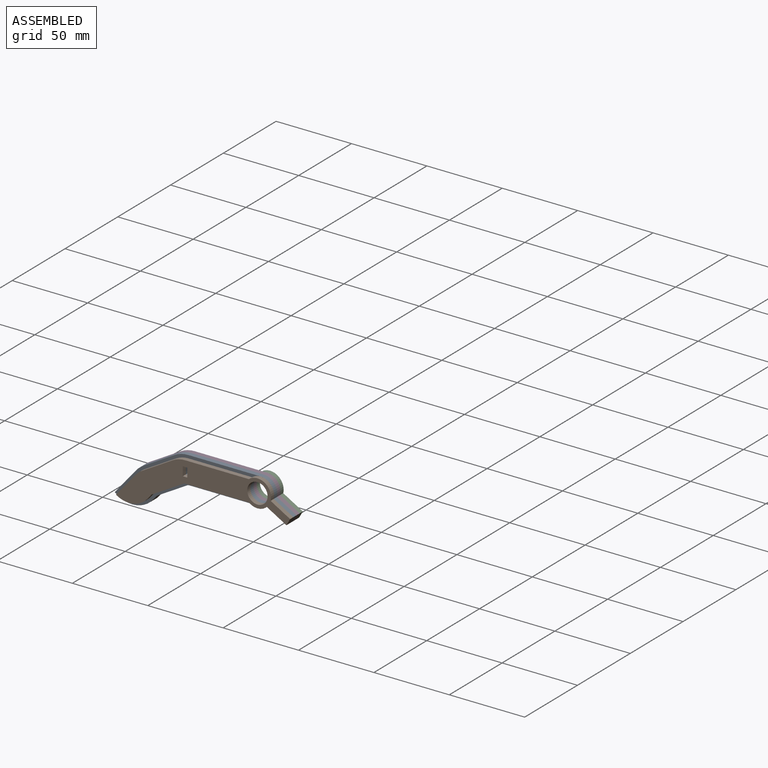
[diagram: assembled view]
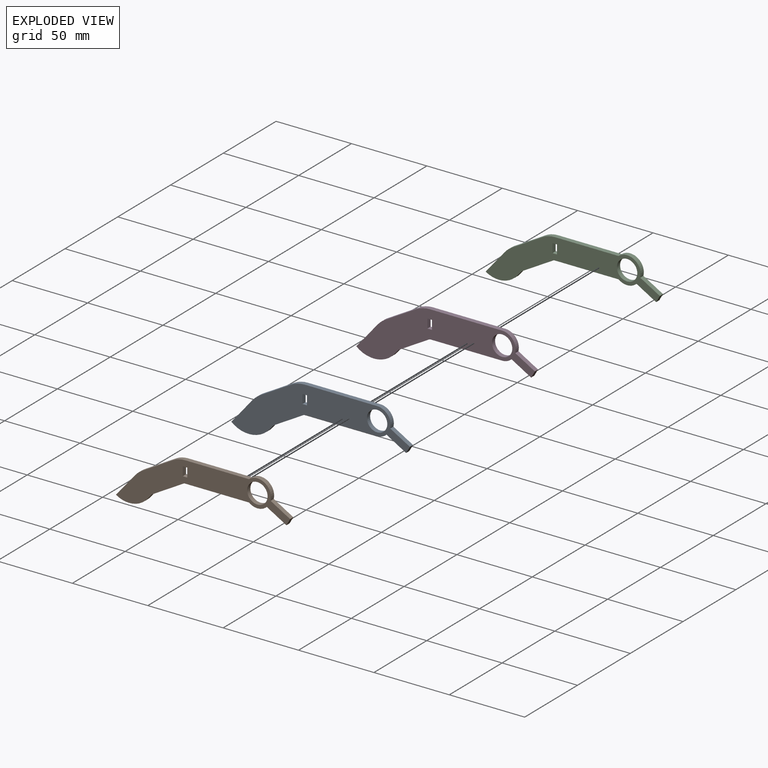
[diagram: exploded view]
GUIDED TOUR — MATED ASSEMBLY (Onshape document 5849b5e793f1111092a481f6, AutoMate assembly 5849b5e793f1111092a481f6_f9d06e3f68af1a660f3dee58_bbcfd2a10ddb605224ee5b25_default)

This assembly has 4 components, labeled P0..P3 below (a component is one placed occurrence of a part; the same part can appear more than once), held together by 3 mates. A mate is a constraint between two components; its type names the relative motion it leaves free:
  FASTENED — locks the two components together rigidly (no relative motion).
Axis/direction vectors are unit vectors and 'through' points are millimeter coordinates, both in the assembly's world frame.

MATES
  1. FASTENED "Fastened 1": P0 <-> P3, direction (0.000, 1.000, 0.000) through (10.89, 1.48, -8.92) mm
  2. FASTENED "Fastened 2": P2 <-> P3, direction (0.000, -1.000, 0.000) through (55.88, 4.48, -2.66) mm
  3. FASTENED "Fastened 3": P0 <-> P1, direction (0.000, -1.000, 0.000) through (55.88, -1.52, -2.66) mm

ASSEMBLY ORDER
  1. P1 — the base component [order verified]
  2. P0 [order verified]
  3. P3 [order verified]
  4. P2 [order verified]
Order-tag legend:
  [order verified] — this step's position reverses a verified removal order: the component was checked to insert without passing through the ones already placed.

Of the 4 components, 4 carry the full construction recipe — the FeatureScript program that regenerates the part's solid from scratch; the rest are supplied as boundary geometry only.
Each toured component is shown spotlighted twice — in the assembled view, then in the exploded view, where a leader line traces a displaced component back to its assembled socket (saturated green if recipe-attached, orange if geometry-only; every other component desaturated gray) — followed by its recipe or geometry summary and the mates that hold it.
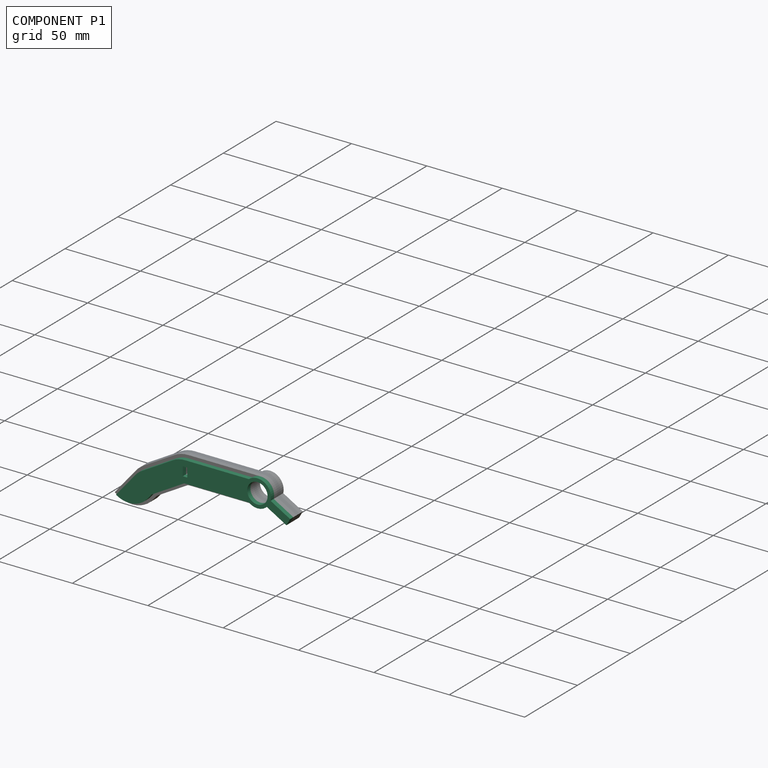
[diagram: component P1 — assembled]
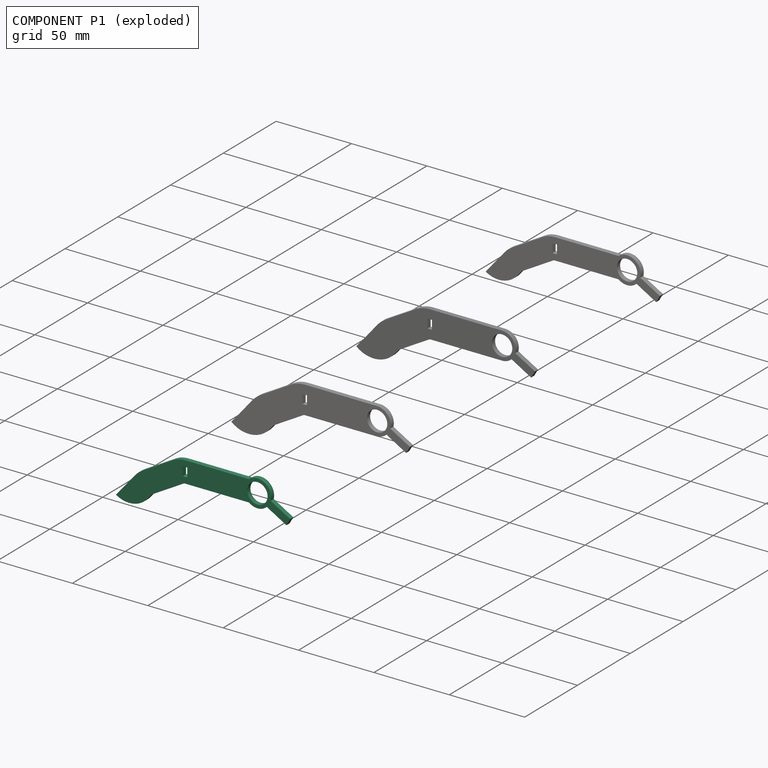
[diagram: component P1 — exploded]
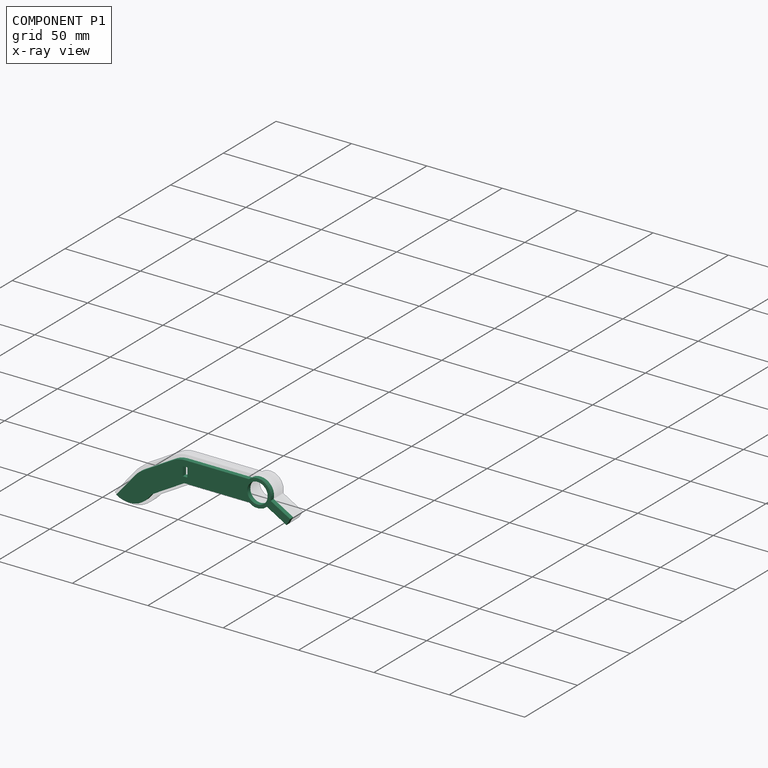
[diagram: component P1 — x-ray view]
COMPONENT P1 — recipe-attached (CADFS 00373789, mesh-verified: the recipe's output STEP matches this component's geometry to below the mesh-comparison resolution (tessellation chordal tolerance ~0.182 mm)).
Held by: FASTENED mate "Fastened 3" to P0.
Construction recipe (FeatureScript — the CAD program that rebuilds this solid; sketch coordinates are in the units given by the * unit suffixes, e.g. mm):

FeatureScript 1511;
import(path : "onshape/std/geometry.fs", version : "1511.0");
import(path : "onshape/std/common.fs", version : "1511.0");
const mm = millimeter;
const VERTEX = EntityType.VERTEX;
const EDGE = EntityType.EDGE;
const FACE = EntityType.FACE;
const BODY = EntityType.BODY;
function v(x, y){return vector(x, y);}
function OD(order){return orderDisambiguation(order);}
function OSD(set){return originalSetDisambiguation(set);}
function TD(topology){return topologyDisambiguation(topology);}
function TDD(query){return trueDependencyDisambiguation(query);}
function sQuery(a, b, c) {return sketchEntityQuery(a, b, c);}

annotation { "Feature Type Name" : "Feature", "Feature Type Description" : "" }
export const myFeature = defineFeature(function(context is Context, id is Id, definition is map)
    precondition{}
    {
        {
            var Q0;
            Q0=qCreatedBy(makeId("Front.planeOp"),FACE);
            var sketch = newSketch(context, id + "F0", { "sketchPlane" : qUnion([Q0])});
            skLineSegment(sketch, "E0.bottom", {"start": v(24, -9) * mm, "end": v(-24, -9) * mm, "construction": true});
            skLineSegment(sketch, "E0.top", {"start": v(24, 9) * mm, "end": v(-24, 9) * mm, "construction": true});
            skLineSegment(sketch, "E0.left", {"start": v(24, -9) * mm, "end": v(24, 9) * mm, "construction": true});
            skLineSegment(sketch, "E0.right", {"start": v(-24, -9) * mm, "end": v(-24, 9) * mm, "construction": true});
            skPoint(sketch, "E0.middle", {"position": v(0, 0) * mm});
            skArc(sketch, "E1", {"start": v(-24, 9) * mm, "mid": v(-28.66, 8.39) * mm, "end": v(-33, 6.59) * mm, "construction": true});
            skLineSegment(sketch, "E2", {"start": v(-33, 6.59) * mm, "end": v(-24, -9) * mm, "construction": true});
            skLineSegment(sketch, "E3", {"start": v(-33, 6.59) * mm, "end": v(-53.78, -5.41) * mm, "construction": true});
            skLineSegment(sketch, "E4", {"start": v(-24, -9) * mm, "end": v(-44.78, -21) * mm, "construction": true});
            skLineSegment(sketch, "E5", {"start": v(-53.78, -5.41) * mm, "end": v(-44.78, -21) * mm, "construction": true});
            skArc(sketch, "E6", {"start": v(-53.78, -5.41) * mm, "mid": v(-56.35, -7.21) * mm, "end": v(-58.57, -9.43) * mm, "construction": true});
            skLineSegment(sketch, "E7", {"start": v(-58.57, -9.43) * mm, "end": v(-44.78, -21) * mm, "construction": true});
            skLineSegment(sketch, "E8", {"start": v(-58.57, -9.43) * mm, "end": v(-72.71, -26.28) * mm, "construction": true});
            skLineSegment(sketch, "E9", {"start": v(-44.78, -21) * mm, "end": v(-47.36, -24.06) * mm, "construction": true});
            skArc(sketch, "E10", {"start": v(-72.71, -26.28) * mm, "mid": v(-59.58, -30.43) * mm, "end": v(-47.36, -24.06) * mm, "construction": true});
            skCircle(sketch, "E11", {"center": v(24, 0) * mm, "radius": 6.75 * mm});
            skLineSegment(sketch, "E12.0", {"start": v(24, -7) * mm, "end": v(-24.54, -7) * mm, "construction": true});
            skLineSegment(sketch, "E12.1", {"start": v(-24.54, -7) * mm, "end": v(-46.1, -19.44) * mm});
            skLineSegment(sketch, "E12.2", {"start": v(-46.1, -19.44) * mm, "end": v(-48.89, -22.78) * mm});
            skArc(sketch, "E12.3", {"start": v(-69.82, -25.94) * mm, "mid": v(-58.75, -28.31) * mm, "end": v(-48.89, -22.78) * mm});
            skLineSegment(sketch, "E12.4", {"start": v(-57.04, -10.72) * mm, "end": v(-69.82, -25.94) * mm});
            skLineSegment(sketch, "E12.5", {"start": v(24, 7) * mm, "end": v(-24, 7) * mm, "construction": true});
            skArc(sketch, "E12.6", {"start": v(-24, 7) * mm, "mid": v(-28.14, 6.45) * mm, "end": v(-32, 4.86) * mm});
            skLineSegment(sketch, "E12.7", {"start": v(-32, 4.86) * mm, "end": v(-52.78, -7.14) * mm});
            skArc(sketch, "E12.8", {"start": v(-52.78, -7.14) * mm, "mid": v(-55.07, -8.74) * mm, "end": v(-57.04, -10.72) * mm});
            skLineSegment(sketch, "E13", {"start": v(24, -7) * mm, "end": v(24, -9) * mm});
            skLineSegment(sketch, "E14", {"start": v(24, 7) * mm, "end": v(24, 9) * mm});
            skArc(sketch, "E15", {"start": v(24, 9) * mm, "mid": v(21, 8.49) * mm, "end": v(18.34, 7) * mm});
            skArc(sketch, "E16", {"start": v(24, -9) * mm, "mid": v(21, -8.49) * mm, "end": v(18.34, -7) * mm});
            skLineSegment(sketch, "E17", {"start": v(-24.54, -7) * mm, "end": v(18.34, -7) * mm});
            skLineSegment(sketch, "E18", {"start": v(18.34, 7) * mm, "end": v(-24, 7) * mm});
            skArc(sketch, "E19", {"start": v(24, 9) * mm, "mid": v(31.09, 5.55) * mm, "end": v(32.74, -2.16) * mm});
            skArc(sketch, "E20", {"start": v(24, -9) * mm, "mid": v(27.36, -8.35) * mm, "end": v(30.24, -6.49) * mm});
            skLineSegment(sketch, "E21", {"start": v(24, 0) * mm, "end": v(44.48, -11.82) * mm, "construction": true});
            skLineSegment(sketch, "E22", {"start": v(32.74, -2.16) * mm, "end": v(45.73, -9.66) * mm});
            skLineSegment(sketch, "E23", {"start": v(45.73, -9.66) * mm, "end": v(43.23, -13.99) * mm});
            skLineSegment(sketch, "E24", {"start": v(43.23, -13.99) * mm, "end": v(30.24, -6.49) * mm});
            skLineSegment(sketch, "E25.bottom", {"start": v(-22.5, -3) * mm, "end": v(-25.5, -3) * mm});
            skLineSegment(sketch, "E25.top", {"start": v(-22.5, 3) * mm, "end": v(-25.5, 3) * mm});
            skLineSegment(sketch, "E25.left", {"start": v(-22.5, -3) * mm, "end": v(-22.5, 3) * mm});
            skLineSegment(sketch, "E25.right", {"start": v(-25.5, -3) * mm, "end": v(-25.5, 3) * mm});
            skPoint(sketch, "E25.middle", {"position": v(-24, 0) * mm});
            skSolve(sketch);
        }
        {
            var Q0;
            Q0=qSketchRegion(id+"F0",true);
            extrude(context, id + "F1", {"entities" : qUnion([Q0]), "depth" : 3 * mm});
        }
    });
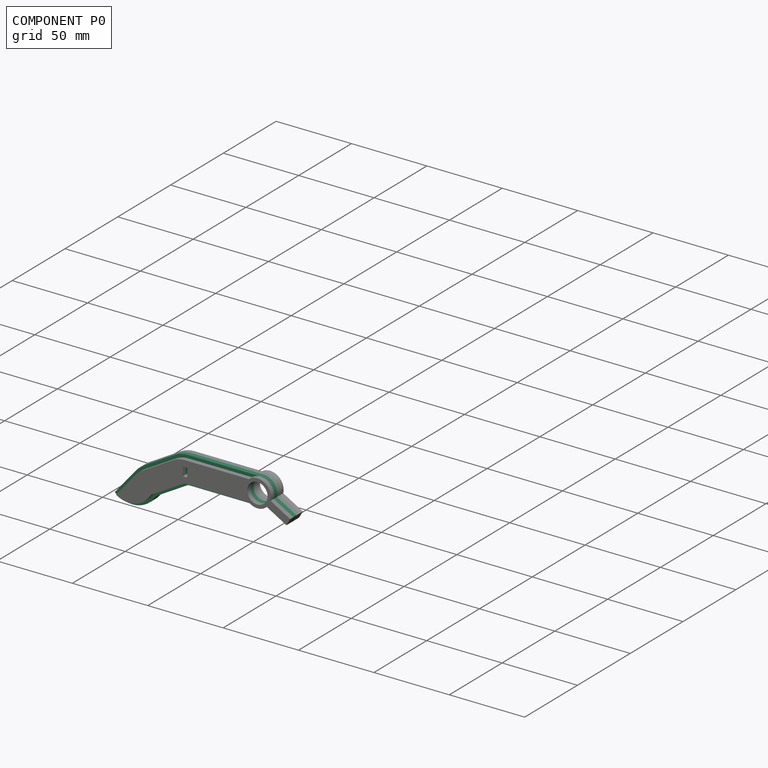
[diagram: component P0 — assembled]
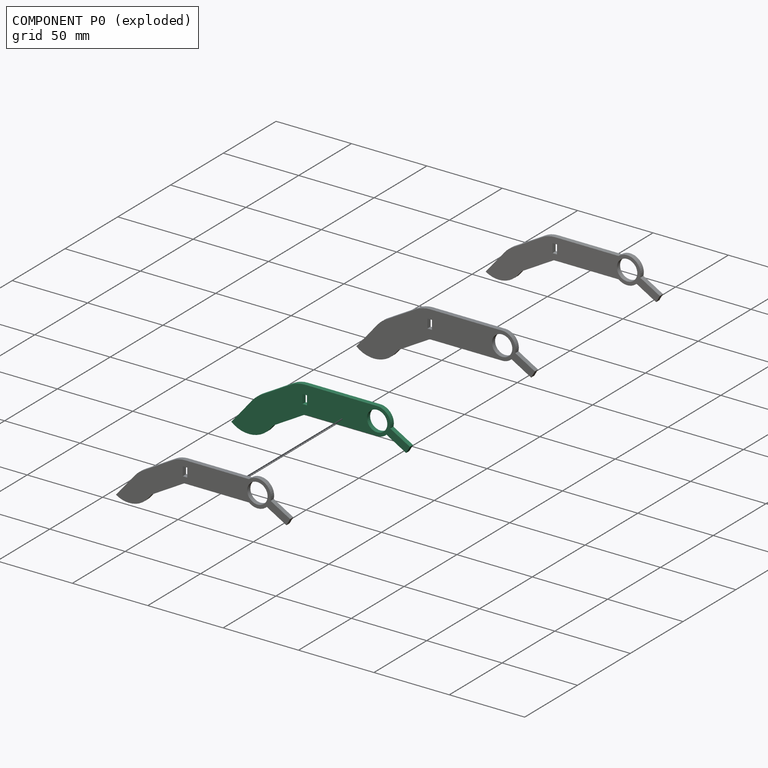
[diagram: component P0 — exploded]
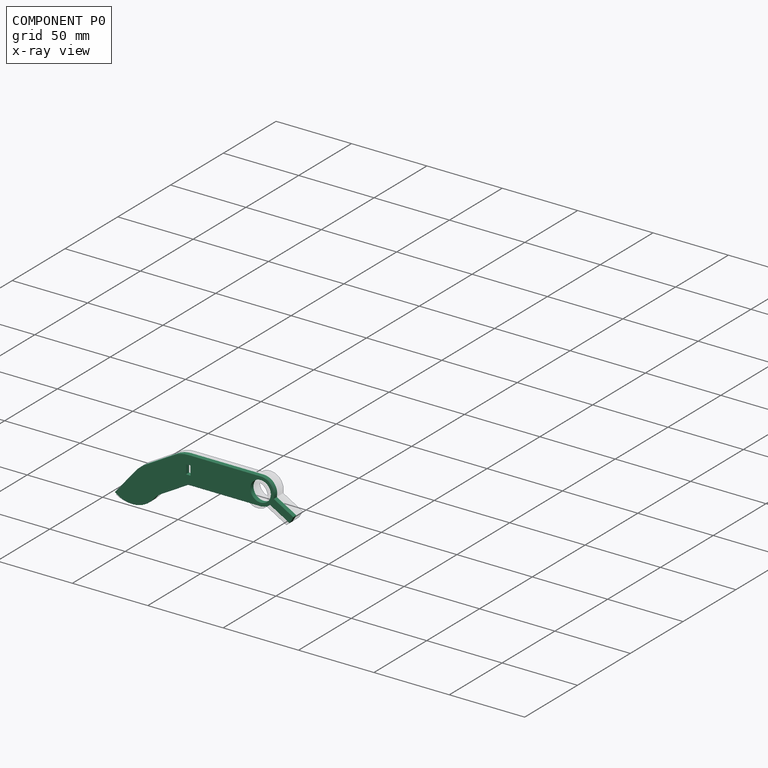
[diagram: component P0 — x-ray view]
COMPONENT P0 — recipe-attached (CADFS 00373788, mesh-verified: the recipe's output STEP matches this component's geometry to below the mesh-comparison resolution (tessellation chordal tolerance ~0.187 mm)).
Held by: FASTENED mate "Fastened 1" to P3; FASTENED mate "Fastened 3" to P1.
Construction recipe (FeatureScript — the CAD program that rebuilds this solid; sketch coordinates are in the units given by the * unit suffixes, e.g. mm):

FeatureScript 1511;
import(path : "onshape/std/geometry.fs", version : "1511.0");
import(path : "onshape/std/common.fs", version : "1511.0");
const mm = millimeter;
const VERTEX = EntityType.VERTEX;
const EDGE = EntityType.EDGE;
const FACE = EntityType.FACE;
const BODY = EntityType.BODY;
function v(x, y){return vector(x, y);}
function OD(order){return orderDisambiguation(order);}
function OSD(set){return originalSetDisambiguation(set);}
function TD(topology){return topologyDisambiguation(topology);}
function TDD(query){return trueDependencyDisambiguation(query);}
function sQuery(a, b, c) {return sketchEntityQuery(a, b, c);}

annotation { "Feature Type Name" : "Feature", "Feature Type Description" : "" }
export const myFeature = defineFeature(function(context is Context, id is Id, definition is map)
    precondition{}
    {
        {
            var Q0;
            Q0=qCreatedBy(makeId("Front.planeOp"),FACE);
            var sketch = newSketch(context, id + "F0", { "sketchPlane" : qUnion([Q0])});
            skLineSegment(sketch, "E0.bottom", {"start": v(24, -9) * mm, "end": v(-24, -9) * mm});
            skLineSegment(sketch, "E0.top", {"start": v(24, 9) * mm, "end": v(-24, 9) * mm});
            skLineSegment(sketch, "E0.left", {"start": v(24, -9) * mm, "end": v(24, 9) * mm, "construction": true});
            skLineSegment(sketch, "E0.right", {"start": v(-24, -9) * mm, "end": v(-24, 9) * mm, "construction": true});
            skPoint(sketch, "E0.middle", {"position": v(0, 0) * mm});
            skArc(sketch, "E1", {"start": v(-24, 9) * mm, "mid": v(-28.66, 8.39) * mm, "end": v(-33, 6.59) * mm});
            skLineSegment(sketch, "E2", {"start": v(-33, 6.59) * mm, "end": v(-24, -9) * mm, "construction": true});
            skLineSegment(sketch, "E3", {"start": v(-33, 6.59) * mm, "end": v(-53.78, -5.41) * mm});
            skLineSegment(sketch, "E4", {"start": v(-24, -9) * mm, "end": v(-44.78, -21) * mm});
            skLineSegment(sketch, "E5", {"start": v(-53.78, -5.41) * mm, "end": v(-44.78, -21) * mm, "construction": true});
            skArc(sketch, "E6", {"start": v(-53.78, -5.41) * mm, "mid": v(-56.35, -7.21) * mm, "end": v(-58.57, -9.43) * mm});
            skLineSegment(sketch, "E7", {"start": v(-58.57, -9.43) * mm, "end": v(-44.78, -21) * mm, "construction": true});
            skLineSegment(sketch, "E8", {"start": v(-58.57, -9.43) * mm, "end": v(-72.71, -26.28) * mm});
            skLineSegment(sketch, "E9", {"start": v(-44.78, -21) * mm, "end": v(-47.36, -24.06) * mm});
            skArc(sketch, "E10", {"start": v(-72.71, -26.28) * mm, "mid": v(-59.58, -30.43) * mm, "end": v(-47.36, -24.06) * mm});
            skCircle(sketch, "E11", {"center": v(24, 0) * mm, "radius": 6.75 * mm});
            skLineSegment(sketch, "E12", {"start": v(24, 0) * mm, "end": v(44.48, -11.82) * mm, "construction": true});
            skArc(sketch, "E13", {"start": v(24, 9) * mm, "mid": v(31.09, 5.55) * mm, "end": v(32.74, -2.16) * mm});
            skArc(sketch, "E14", {"start": v(24, -9) * mm, "mid": v(27.36, -8.35) * mm, "end": v(30.24, -6.49) * mm});
            skLineSegment(sketch, "E15", {"start": v(32.74, -2.16) * mm, "end": v(45.73, -9.66) * mm});
            skLineSegment(sketch, "E16", {"start": v(45.73, -9.66) * mm, "end": v(43.23, -13.99) * mm});
            skLineSegment(sketch, "E17", {"start": v(43.23, -13.99) * mm, "end": v(30.24, -6.49) * mm});
            skLineSegment(sketch, "E18.bottom", {"start": v(-22.5, -3) * mm, "end": v(-25.5, -3) * mm});
            skLineSegment(sketch, "E18.top", {"start": v(-22.5, 3) * mm, "end": v(-25.5, 3) * mm});
            skLineSegment(sketch, "E18.left", {"start": v(-22.5, -3) * mm, "end": v(-22.5, 3) * mm});
            skLineSegment(sketch, "E18.right", {"start": v(-25.5, -3) * mm, "end": v(-25.5, 3) * mm});
            skPoint(sketch, "E18.middle", {"position": v(-24, 0) * mm});
            skSolve(sketch);
        }
        {
            var Q0;
            Q0=qSketchRegion(id+"F0",true);
            extrude(context, id + "F1", {"entities" : qUnion([Q0]), "depth" : 3 * mm});
        }
        {
            var Q0;
            Q0=makeQuery(id+"F1.opExtrude","SWEPT_EDGE",EDGE,{"disambiguationData":[OSD([sQuery(id+"F0.wireOp",EDGE,"E0.bottom"),sQuery(id+"F0.wireOp",EDGE,"E4")])]});
            var Q1;
            Q1=makeQuery(id+"F1.opExtrude","SWEPT_EDGE",EDGE,{"disambiguationData":[OSD([sQuery(id+"F0.wireOp",EDGE,"E4"),sQuery(id+"F0.wireOp",EDGE,"E9")])]});
            fillet(context, id + "F2", {"entities" : qUnion([Q0, Q1]), "radius" : 3 * mm, "tangentPropagation" : true, "allowEdgeOverflow" : false});
        }
    });
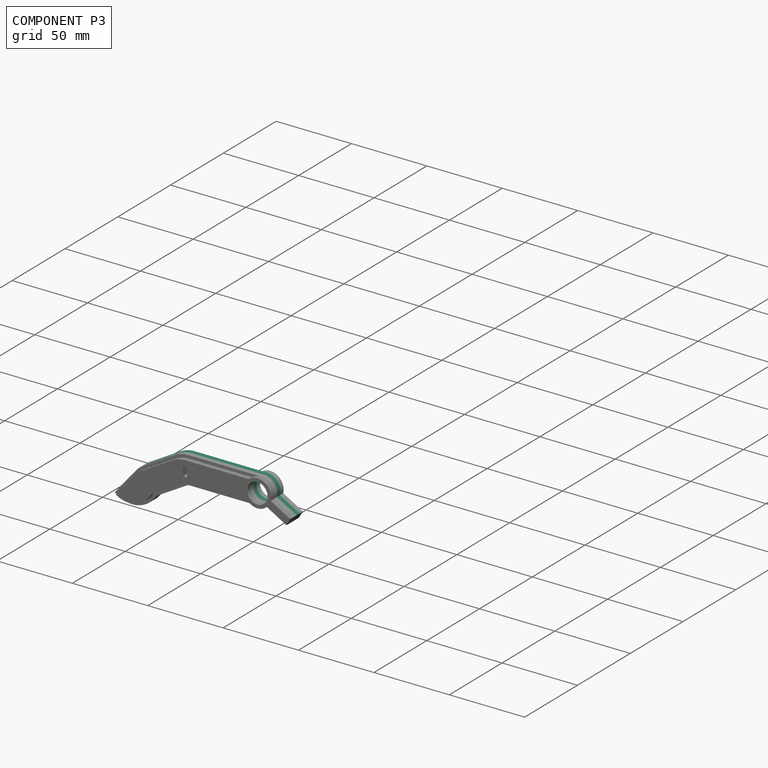
[diagram: component P3 — assembled]
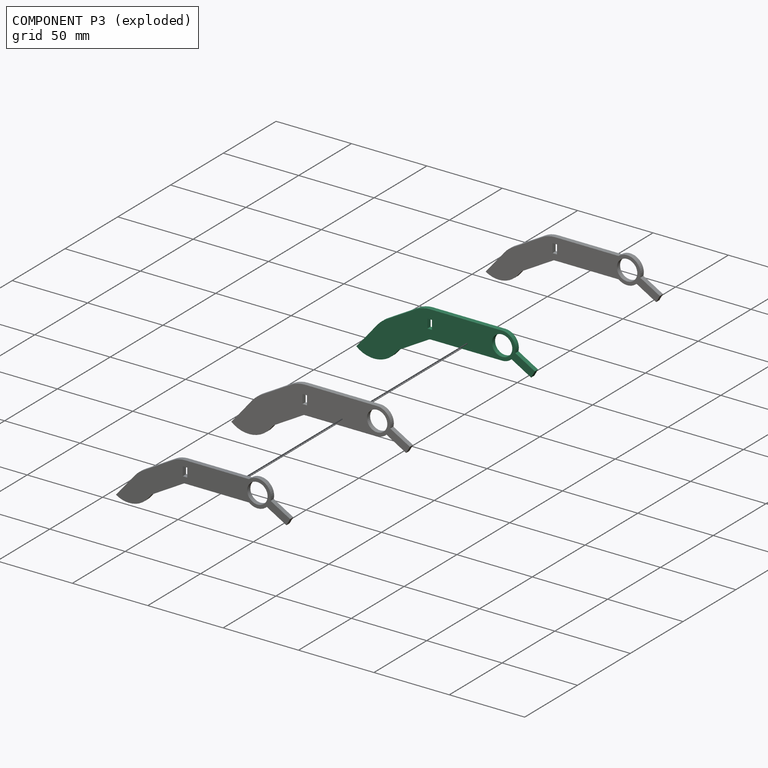
[diagram: component P3 — exploded]
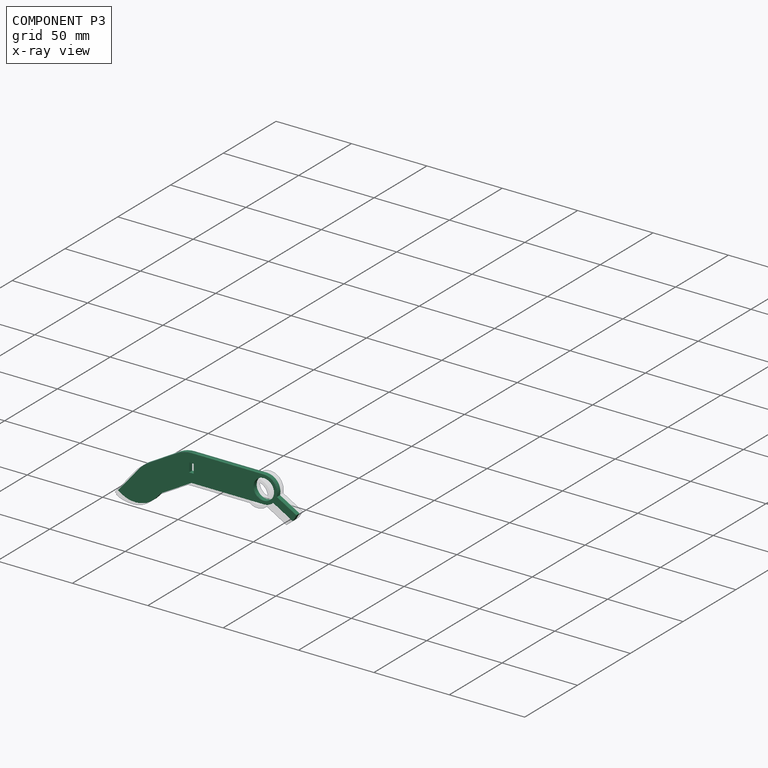
[diagram: component P3 — x-ray view]
COMPONENT P3 — same part as P0 (CADFS 00373788); its construction recipe is shown at P0.
Held by: FASTENED mate "Fastened 1" to P0; FASTENED mate "Fastened 2" to P2.
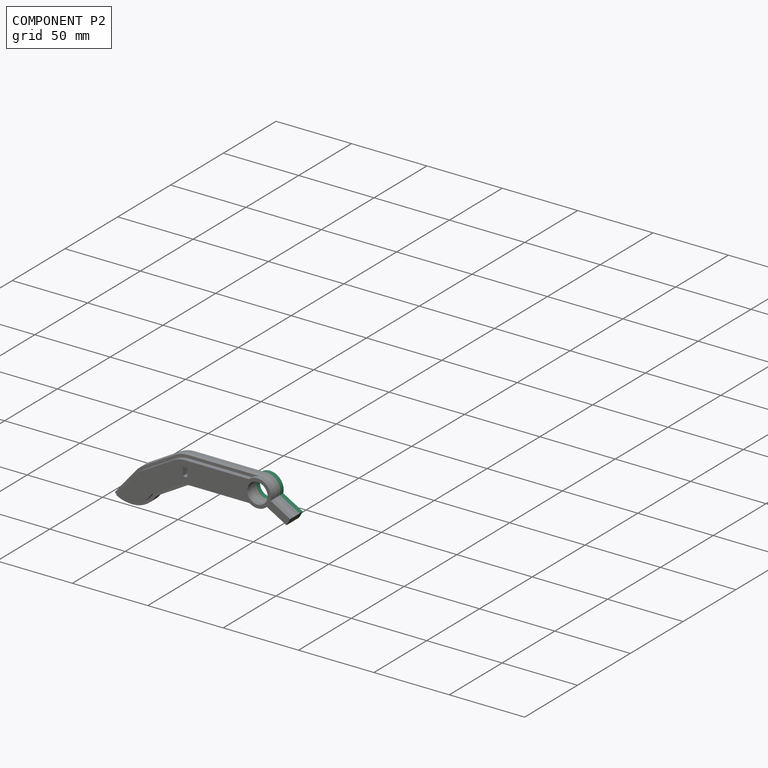
[diagram: component P2 — assembled]
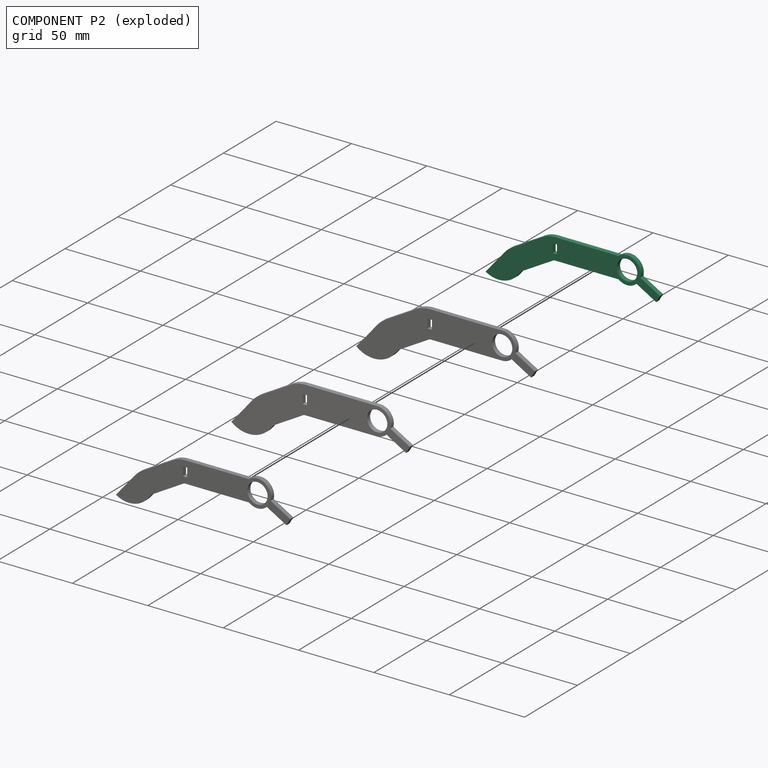
[diagram: component P2 — exploded]
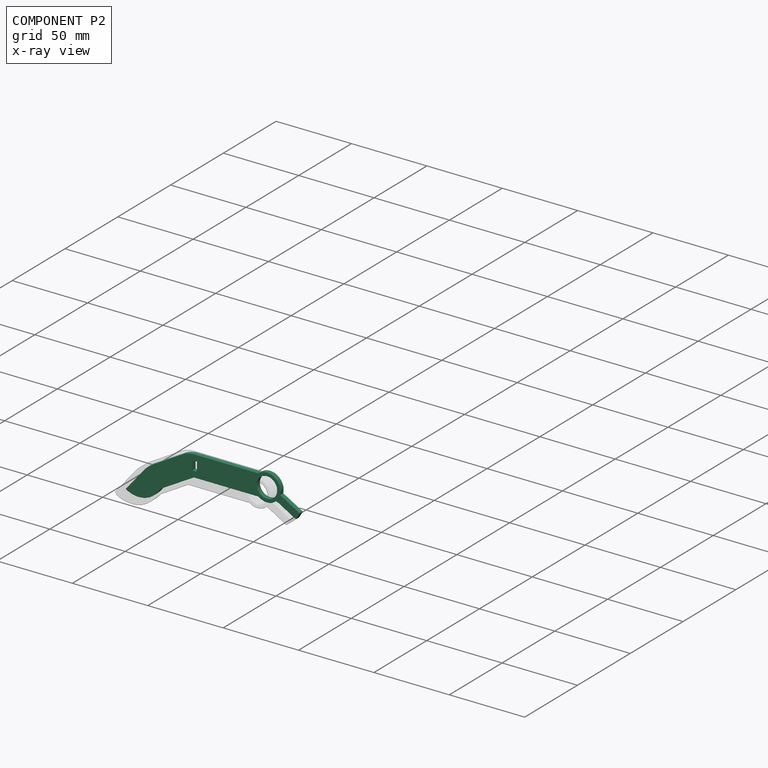
[diagram: component P2 — x-ray view]
COMPONENT P2 — same part as P1 (CADFS 00373789); its construction recipe is shown at P1.
Held by: FASTENED mate "Fastened 2" to P3.
PROVENANCE & LICENSES
Assembly (occurrences, transforms, mates, per-part STEP geometry): AutoMate dataset, Zenodo record 7776208, CC0.
Construction recipes: CADFS (HuggingFace VladPyatov/CADFS, CC-BY-4.0, layered over the ABC dataset), FeatureScript reconstruction programs keyed by ABC model id.
Join: ABC meta listings map ABC model id -> Onshape documentId; within a shared document, parts are matched by geometric signature (bounding-box dims + volume at 0.1% relative tolerance, exact B-rep face/solid counts).
Verification: 4 of this assembly's 4 components carry a recipe attachment, and every attachment is mesh-verified: the CADFS STEP and the AutoMate member STEP were compared as meshes in their shared local frame (symmetric sampled-point-to-mesh distance); worst across the 4 attachments: below the mesh-comparison resolution (tessellation chordal tolerance ~0.187 mm) on a 125 mm part.
Renders: orthographic iso camera (az 35 / el 25); the floor grid conveys scale (grid pitch printed in each image; no ruler). In the exploded view each component is displaced by its stored offset vector: the offsets alone carry the explosion direction (mate normal/axis signs are not orientation cues and do not encode it), and separation distances are assigned per mate-chain, not proportionally to assembly-order depth.
